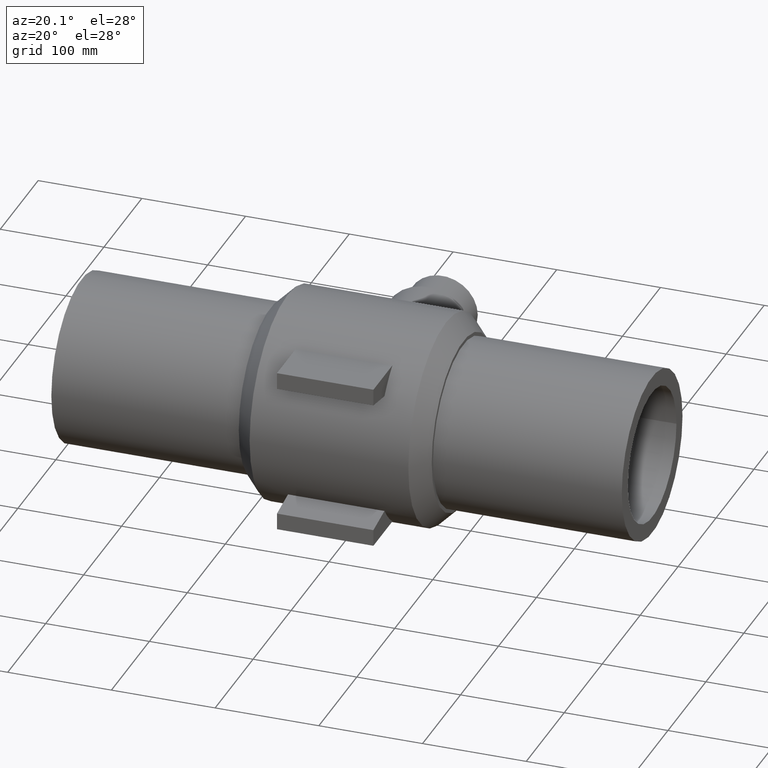
[diagram: clean part render]
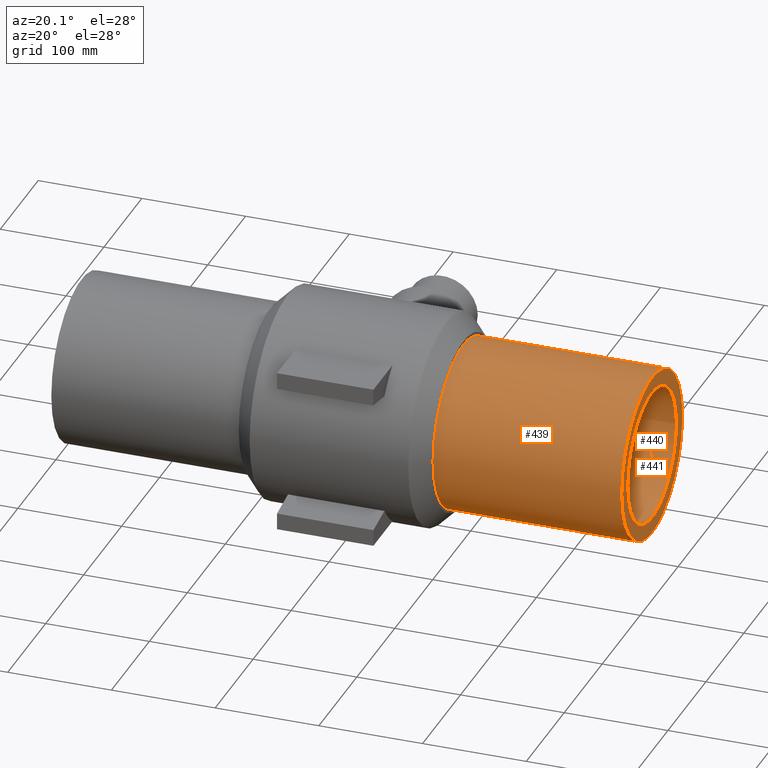
[diagram: same view with one multi-face feature highlighted, each face labeled with its STEP entity id]
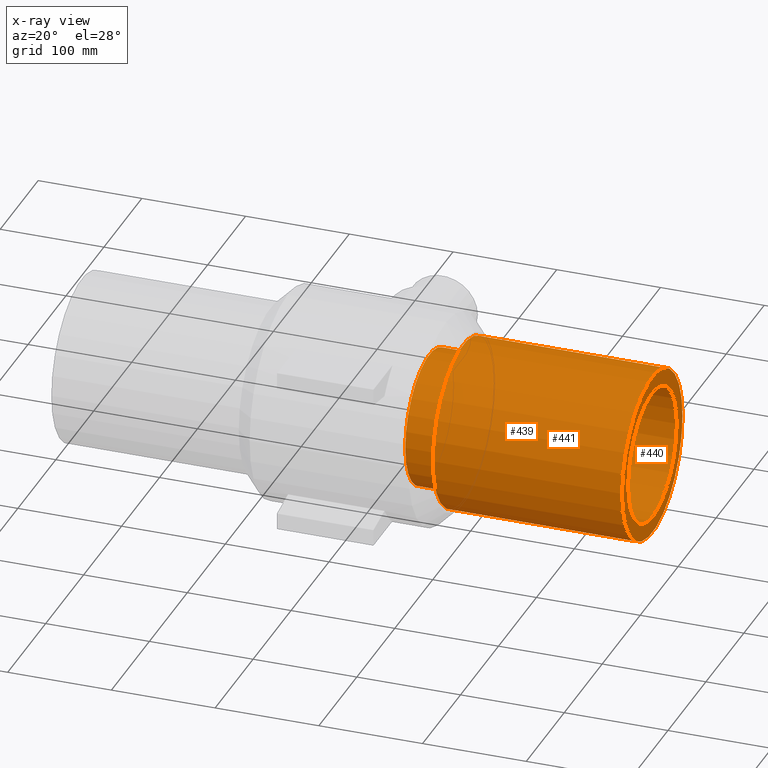
[diagram: x-ray of the same camera — body ghosted, the whole feature saturated]
A machine part, auxiliary view. The highlighted faces form ONE feature: a stepped (counterbored) hole: 2 coaxial cylindrical walls of radii 64 -> 80 mm joined by 1 annular planar shoulder face(s). The faces share edges in the B-rep.
The next image is the same camera in x-ray: the body ghosted and the whole hole feature saturated, so the bore chain is visible through the body.
Their STEP definitions:
[1] entity #439 (Cylinder):
#95=FACE_BOUND('',#188,.T.);
#108=CYLINDRICAL_SURFACE('',#493,80.);
#138=FACE_OUTER_BOUND('',#187,.T.);
#187=EDGE_LOOP('',(#398));
#188=EDGE_LOOP('',(#399));
#222=CIRCLE('',#492,80.);
#223=CIRCLE('',#494,80.);
#261=VERTEX_POINT('',#916);
#262=VERTEX_POINT('',#919);
#309=EDGE_CURVE('',#261,#261,#222,.T.);
#310=EDGE_CURVE('',#262,#262,#223,.T.);
#398=ORIENTED_EDGE('',*,*,#310,.F.);
#399=ORIENTED_EDGE('',*,*,#309,.T.);
#439=ADVANCED_FACE('',(#138,#95),#108,.T.);
#492=AXIS2_PLACEMENT_3D('',#917,#616,#617);
#493=AXIS2_PLACEMENT_3D('',#918,#618,#619);
#494=AXIS2_PLACEMENT_3D('',#920,#620,#621);
#616=DIRECTION('center_axis',(1.,0.,0.));
#617=DIRECTION('ref_axis',(0.,0.,-1.));
#618=DIRECTION('center_axis',(1.,0.,0.));
#619=DIRECTION('ref_axis',(0.,1.,0.));
#620=DIRECTION('center_axis',(1.,0.,0.));
#621=DIRECTION('ref_axis',(0.,0.,-1.));
#916=CARTESIAN_POINT('',(93.,80.,0.));
#917=CARTESIAN_POINT('Origin',(93.,0.,0.));
#918=CARTESIAN_POINT('Origin',(184.,0.,0.));
#919=CARTESIAN_POINT('',(275.,80.,0.));
#920=CARTESIAN_POINT('Origin',(275.,0.,0.));
[2] entity #441 (Cylinder):
#97=FACE_BOUND('',#192,.T.);
#109=CYLINDRICAL_SURFACE('',#497,64.);
#140=FACE_OUTER_BOUND('',#191,.T.);
#191=EDGE_LOOP('',(#402));
#192=EDGE_LOOP('',(#403));
#224=CIRCLE('',#496,64.);
#225=CIRCLE('',#498,64.);
#263=VERTEX_POINT('',#922);
#264=VERTEX_POINT('',#925);
#311=EDGE_CURVE('',#263,#263,#224,.T.);
#312=EDGE_CURVE('',#264,#264,#225,.T.);
#402=ORIENTED_EDGE('',*,*,#312,.F.);
#403=ORIENTED_EDGE('',*,*,#311,.T.);
#441=ADVANCED_FACE('',(#140,#97),#109,.F.);
#496=AXIS2_PLACEMENT_3D('',#923,#624,#625);
#497=AXIS2_PLACEMENT_3D('',#924,#626,#627);
#498=AXIS2_PLACEMENT_3D('',#926,#628,#629);
#624=DIRECTION('center_axis',(1.,0.,0.));
#625=DIRECTION('ref_axis',(0.,0.,-1.));
#626=DIRECTION('center_axis',(1.,0.,0.));
#627=DIRECTION('ref_axis',(0.,1.,0.));
#628=DIRECTION('center_axis',(1.,0.,0.));
#629=DIRECTION('ref_axis',(0.,0.,-1.));
#922=CARTESIAN_POINT('',(275.,64.,0.));
#923=CARTESIAN_POINT('Origin',(275.,0.,0.));
#924=CARTESIAN_POINT('Origin',(167.699337741083,0.,0.));
#925=CARTESIAN_POINT('',(60.398675482166,64.,0.));
#926=CARTESIAN_POINT('Origin',(60.398675482166,0.,0.));
[3] entity #440 (Plane):
#32=PLANE('',#495);
#96=FACE_BOUND('',#190,.T.);
#139=FACE_OUTER_BOUND('',#189,.T.);
#189=EDGE_LOOP('',(#400));
#190=EDGE_LOOP('',(#401));
#223=CIRCLE('',#494,80.);
#224=CIRCLE('',#496,64.);
#262=VERTEX_POINT('',#919);
#263=VERTEX_POINT('',#922);
#310=EDGE_CURVE('',#262,#262,#223,.T.);
#311=EDGE_CURVE('',#263,#263,#224,.T.);
#400=ORIENTED_EDGE('',*,*,#310,.T.);
#401=ORIENTED_EDGE('',*,*,#311,.F.);
#440=ADVANCED_FACE('',(#139,#96),#32,.T.);
#494=AXIS2_PLACEMENT_3D('',#920,#620,#621);
#495=AXIS2_PLACEMENT_3D('',#921,#622,#623);
#496=AXIS2_PLACEMENT_3D('',#923,#624,#625);
#620=DIRECTION('center_axis',(1.,0.,0.));
#621=DIRECTION('ref_axis',(0.,0.,-1.));
#622=DIRECTION('center_axis',(1.,0.,0.));
#623=DIRECTION('ref_axis',(0.,0.,-1.));
#624=DIRECTION('center_axis',(1.,0.,0.));
#625=DIRECTION('ref_axis',(0.,0.,-1.));
#919=CARTESIAN_POINT('',(275.,80.,0.));
#920=CARTESIAN_POINT('Origin',(275.,0.,0.));
#921=CARTESIAN_POINT('Origin',(275.,64.,0.));
#922=CARTESIAN_POINT('',(275.,64.,0.));
#923=CARTESIAN_POINT('Origin',(275.,0.,0.));